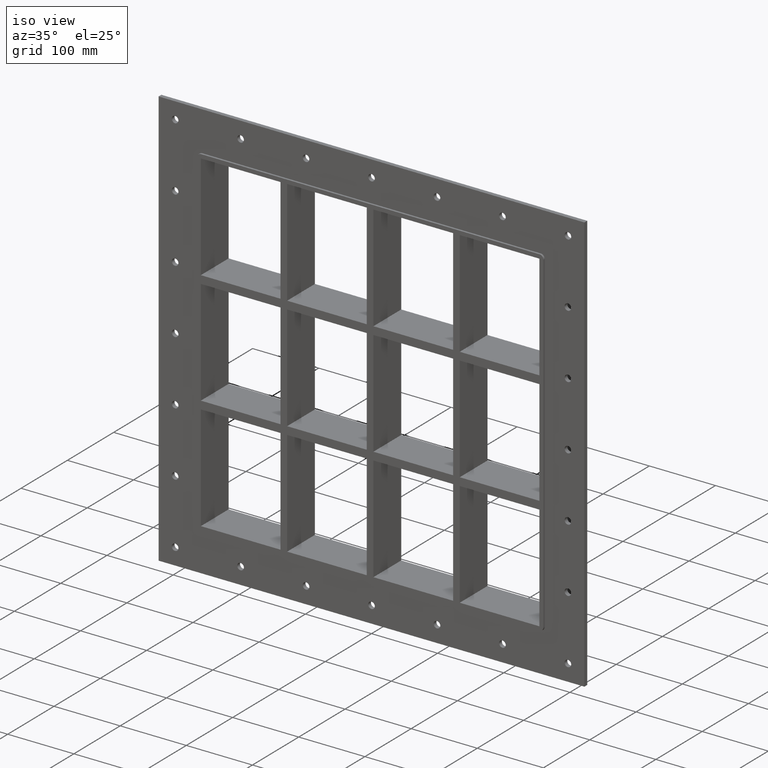
[diagram: clean part render]
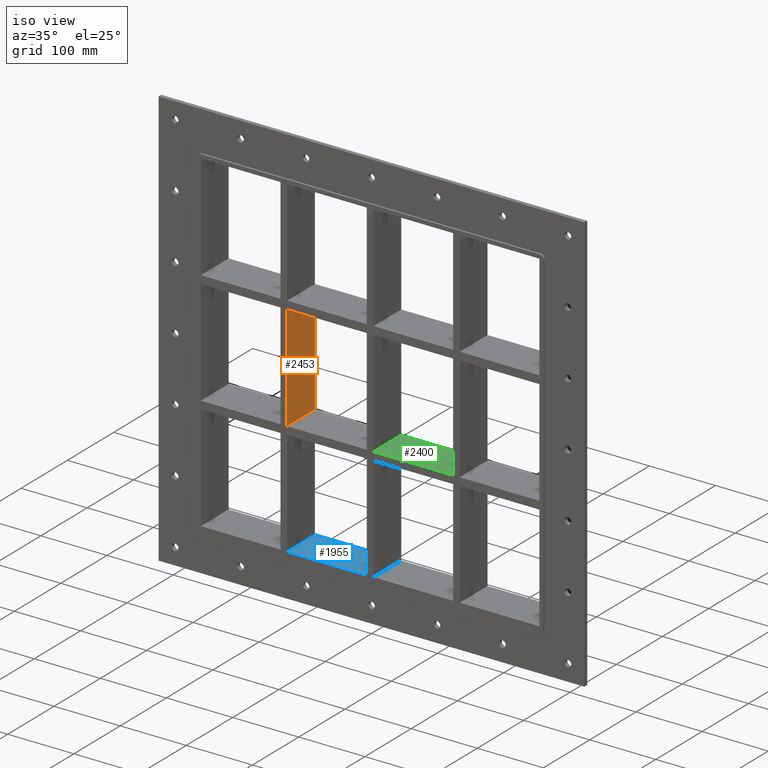
[diagram: same view with three faces highlighted in distinct colors, each labeled with its STEP entity id]
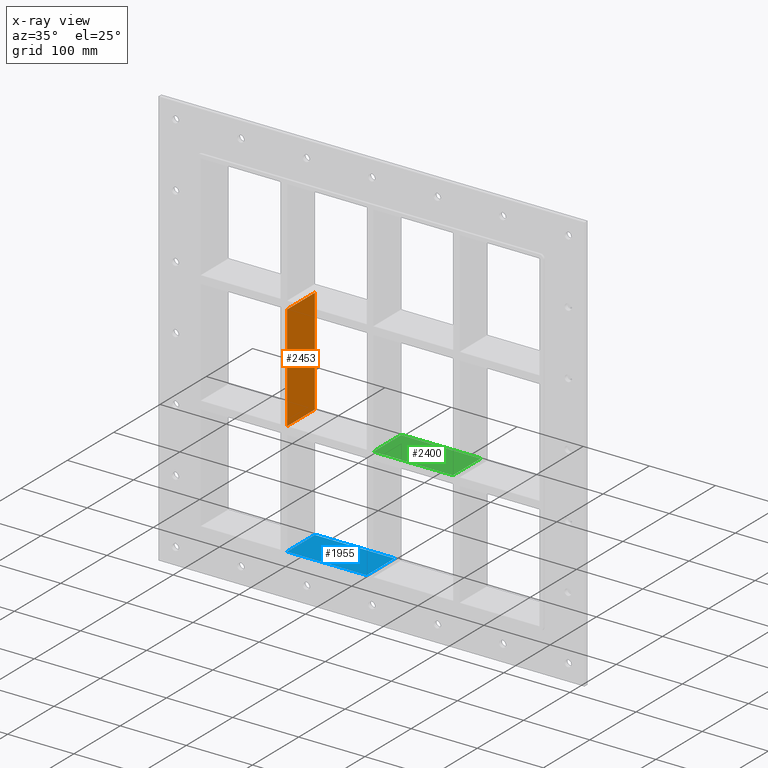
[diagram: x-ray of the same camera — body ghosted, the three highlighted faces saturated]
A machine part, iso view with three faces highlighted in distinct colors.
The next image is the same camera in x-ray (body ghosted, the three faces saturated) — at least one of them is partly hidden behind the body in this view.
Their STEP definitions:

[orange] entity #2453 — the highlighted planar face has unit normal (1, 0, 0).
#795=CARTESIAN_POINT('',(-125.49999999999272,-3.0,79.749999999990564));
#796=VERTEX_POINT('',#795);
#803=CARTESIAN_POINT('',(-125.49999999999272,57.0,79.749999999990564));
#804=VERTEX_POINT('',#803);
#805=CARTESIAN_POINT('',(-125.49999999999272,57.0,79.749999999990578));
#806=DIRECTION('',(0.0,-1.0,0.0));
#807=VECTOR('',#806,60.0);
#808=LINE('',#805,#807);
#809=EDGE_CURVE('',#804,#796,#808,.T.);
#1540=CARTESIAN_POINT('',(-125.49999999999272,57.0,-79.749999999999943));
#1541=VERTEX_POINT('',#1540);
#1542=CARTESIAN_POINT('',(-125.49999999999272,57.0,79.749999999990564));
#1543=DIRECTION('',(0.0,0.0,-1.0));
#1544=VECTOR('',#1543,159.49999999999051);
#1545=LINE('',#1542,#1544);
#1546=EDGE_CURVE('',#804,#1541,#1545,.T.);
#2106=CARTESIAN_POINT('',(-125.49999999999272,-3.0,-79.749999999999943));
#2107=VERTEX_POINT('',#2106);
#2114=CARTESIAN_POINT('',(-125.49999999999272,-3.0,79.749999999990564));
#2115=DIRECTION('',(0.0,0.0,-1.0));
#2116=VECTOR('',#2115,159.49999999999051);
#2117=LINE('',#2114,#2116);
#2118=EDGE_CURVE('',#796,#2107,#2117,.T.);
#2297=CARTESIAN_POINT('',(-125.49999999999272,-3.0,-79.749999999999943));
#2298=DIRECTION('',(0.0,1.0,0.0));
#2299=VECTOR('',#2298,60.0);
#2300=LINE('',#2297,#2299);
#2301=EDGE_CURVE('',#2107,#1541,#2300,.T.);
#2442=CARTESIAN_POINT('',(-125.49999999999272,-3.0,251.25));
#2443=DIRECTION('',(1.0,0.0,0.0));
#2444=DIRECTION('',(0.0,0.0,-1.0));
#2445=AXIS2_PLACEMENT_3D('',#2442,#2443,#2444);
#2446=PLANE('',#2445);
#2447=ORIENTED_EDGE('',*,*,#809,.T.);
#2448=ORIENTED_EDGE('',*,*,#2118,.T.);
#2449=ORIENTED_EDGE('',*,*,#2301,.T.);
#2450=ORIENTED_EDGE('',*,*,#1546,.F.);
#2451=EDGE_LOOP('',(#2447,#2448,#2449,#2450));
#2452=FACE_OUTER_BOUND('',#2451,.T.);
#2453=ADVANCED_FACE('',(#2452),#2446,.T.);

[blue] entity #1955 — the highlighted planar face has unit normal (0, 0, -1).
#1598=CARTESIAN_POINT('',(-5.000000000001315,57.0,-251.25000000000006));
#1599=VERTEX_POINT('',#1598);
#1616=CARTESIAN_POINT('',(-125.49999999999272,57.0,-251.24999999998437));
#1617=VERTEX_POINT('',#1616);
#1624=CARTESIAN_POINT('',(-125.49999999999272,57.0,-251.25000000000006));
#1625=DIRECTION('',(1.0,0.0,0.0));
#1626=VECTOR('',#1625,120.49999999999142);
#1627=LINE('',#1624,#1626);
#1628=EDGE_CURVE('',#1617,#1599,#1627,.T.);
#1860=CARTESIAN_POINT('',(-5.000000000001315,-3.0,-251.25000000000006));
#1861=VERTEX_POINT('',#1860);
#1862=CARTESIAN_POINT('',(-5.000000000001315,-3.0,-251.25000000000006));
#1863=DIRECTION('',(0.0,1.0,0.0));
#1864=VECTOR('',#1863,60.000000000000007);
#1865=LINE('',#1862,#1864);
#1866=EDGE_CURVE('',#1861,#1599,#1865,.T.);
#1932=CARTESIAN_POINT('',(256.0,0.0,-251.25000000000006));
#1933=DIRECTION('',(0.0,0.0,-1.0));
#1934=DIRECTION('',(-1.0,0.0,0.0));
#1935=AXIS2_PLACEMENT_3D('',#1932,#1933,#1934);
#1936=PLANE('',#1935);
#1937=ORIENTED_EDGE('',*,*,#1866,.T.);
#1938=ORIENTED_EDGE('',*,*,#1628,.F.);
#1939=CARTESIAN_POINT('',(-125.49999999999272,-3.0,-251.24999999998434));
#1940=VERTEX_POINT('',#1939);
#1941=CARTESIAN_POINT('',(-125.49999999999272,57.000000000000007,-251.25000000000006));
#1942=DIRECTION('',(0.0,-1.0,0.0));
#1943=VECTOR('',#1942,60.000000000000007);
#1944=LINE('',#1941,#1943);
#1945=EDGE_CURVE('',#1617,#1940,#1944,.T.);
#1946=ORIENTED_EDGE('',*,*,#1945,.T.);
#1947=CARTESIAN_POINT('',(-5.000000000001307,-3.0,-251.25000000000006));
#1948=DIRECTION('',(-1.0,0.0,0.0));
#1949=VECTOR('',#1948,120.49999999999142);
#1950=LINE('',#1947,#1949);
#1951=EDGE_CURVE('',#1861,#1940,#1950,.T.);
#1952=ORIENTED_EDGE('',*,*,#1951,.F.);
#1953=EDGE_LOOP('',(#1937,#1938,#1946,#1952));
#1954=FACE_OUTER_BOUND('',#1953,.T.);
#1955=ADVANCED_FACE('',(#1954),#1936,.F.);

[green] entity #2400 — the highlighted planar face has unit normal (0, 0, 1).
#1515=CARTESIAN_POINT('',(5.000000000007283,57.0,-79.749999999999943));
#1516=VERTEX_POINT('',#1515);
#1523=CARTESIAN_POINT('',(125.49999999999868,57.0,-79.749999999999943));
#1524=VERTEX_POINT('',#1523);
#1525=CARTESIAN_POINT('',(5.000000000007276,57.0,-79.749999999999943));
#1526=DIRECTION('',(1.0,0.0,0.0));
#1527=VECTOR('',#1526,120.49999999999142);
#1528=LINE('',#1525,#1527);
#1529=EDGE_CURVE('',#1516,#1524,#1528,.T.);
#1719=CARTESIAN_POINT('',(125.49999999999868,-3.0,-79.749999999999943));
#1720=VERTEX_POINT('',#1719);
#1721=CARTESIAN_POINT('',(125.49999999999868,-3.0,-79.749999999999943));
#1722=DIRECTION('',(0.0,1.0,0.0));
#1723=VECTOR('',#1722,60.0);
#1724=LINE('',#1721,#1723);
#1725=EDGE_CURVE('',#1720,#1524,#1724,.T.);
#1883=CARTESIAN_POINT('',(5.000000000007283,-3.0,-79.749999999999943));
#1884=VERTEX_POINT('',#1883);
#1891=CARTESIAN_POINT('',(5.000000000007283,57.0,-79.749999999999943));
#1892=DIRECTION('',(0.0,-1.0,0.0));
#1893=VECTOR('',#1892,60.0);
#1894=LINE('',#1891,#1893);
#1895=EDGE_CURVE('',#1516,#1884,#1894,.T.);
#2095=CARTESIAN_POINT('',(5.000000000007276,-3.0,-79.749999999999943));
#2096=DIRECTION('',(1.0,0.0,0.0));
#2097=VECTOR('',#2096,120.49999999999142);
#2098=LINE('',#2095,#2097);
#2099=EDGE_CURVE('',#1884,#1720,#2098,.T.);
#2389=CARTESIAN_POINT('',(-255.99999999999972,-3.0,-79.749999999999943));
#2390=DIRECTION('',(0.0,0.0,1.0));
#2391=DIRECTION('',(1.0,0.0,0.0));
#2392=AXIS2_PLACEMENT_3D('',#2389,#2390,#2391);
#2393=PLANE('',#2392);
#2394=ORIENTED_EDGE('',*,*,#1725,.T.);
#2395=ORIENTED_EDGE('',*,*,#1529,.F.);
#2396=ORIENTED_EDGE('',*,*,#1895,.T.);
#2397=ORIENTED_EDGE('',*,*,#2099,.T.);
#2398=EDGE_LOOP('',(#2394,#2395,#2396,#2397));
#2399=FACE_OUTER_BOUND('',#2398,.T.);
#2400=ADVANCED_FACE('',(#2399),#2393,.T.);